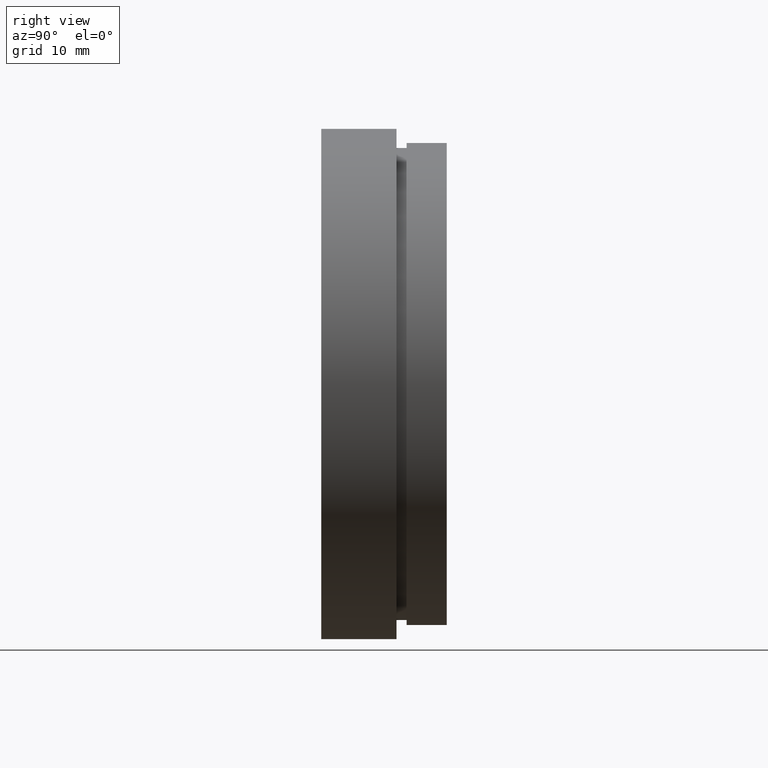
[diagram: clean part render]
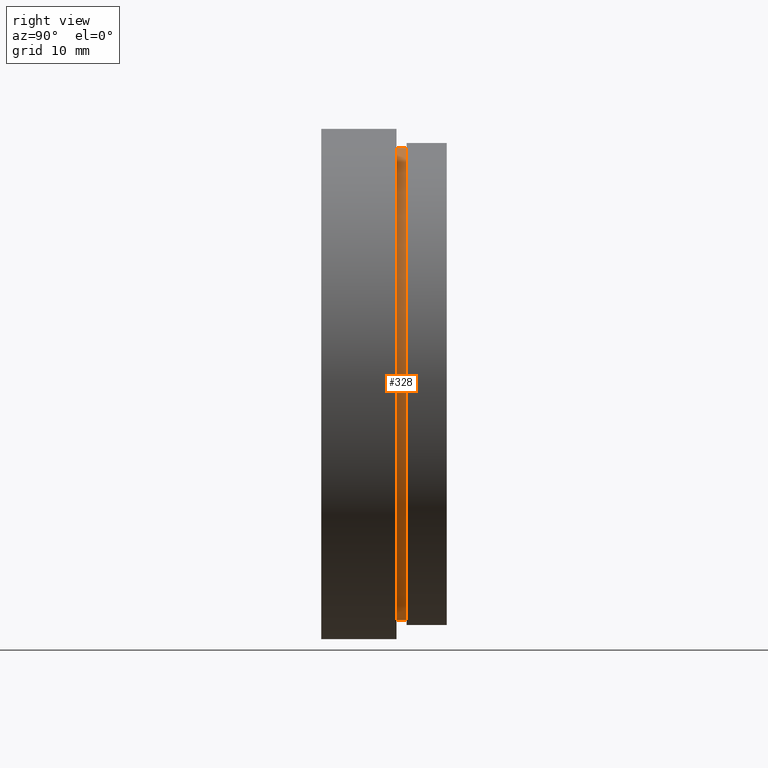
[diagram: same view with one face highlighted and labeled with its STEP entity id]
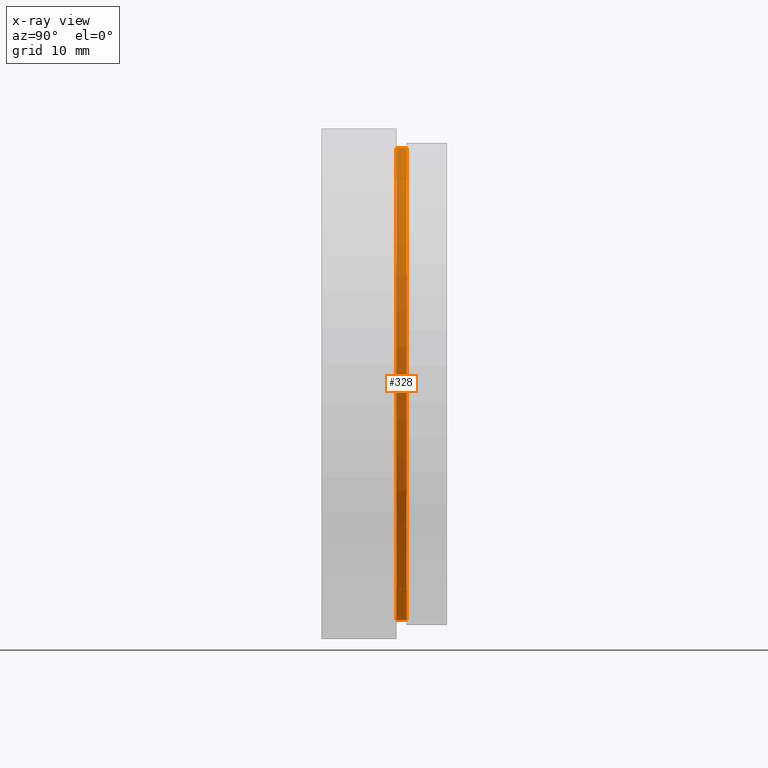
[diagram: x-ray of the same camera — body ghosted, the highlighted face saturated]
A machine part, right view. The second image highlights one B-rep face of the part: STEP entity #328.
The next image is the same camera in x-ray: the body ghosted, the highlighted face saturated — about 0% of this face is hidden behind the body in this view.
In plain terms, the highlighted cylindrical surface (partial cylindrical patch) has radius 23.5 mm, axis along (-0, 1, -0).
Its self-contained STEP definition (entity closure, byte-faithful):
#6 = VERTEX_POINT ( 'NONE', #571 ) ;
#8 = CARTESIAN_POINT ( 'NONE',  ( 0.0000000000000000000, 161.3761669434274500, 0.0000000000000000000 ) ) ;
#22 = DIRECTION ( 'NONE',  ( 0.0000000000000000000, 0.0000000000000000000, 1.000000000000000000 ) ) ;
#27 = AXIS2_PLACEMENT_3D ( 'NONE', #107, #295, #584 ) ;
#57 = CARTESIAN_POINT ( 'NONE',  ( 0.0000000000000000000, 7.499999999999978700, 23.50000000000001800 ) ) ;
#62 = CIRCLE ( 'NONE', #27, 23.50000000000001800 ) ;
#70 = AXIS2_PLACEMENT_3D ( 'NONE', #555, #405, #458 ) ;
#103 = CYLINDRICAL_SURFACE ( 'NONE', #415, 23.50000000000001800 ) ;
#107 = CARTESIAN_POINT ( 'NONE',  ( 0.0000000000000000000, 7.499999999999978700, 0.0000000000000000000 ) ) ;
#121 = CARTESIAN_POINT ( 'NONE',  ( 2.877919977996282300E-015, 7.499999999999978700, -23.50000000000001800 ) ) ;
#147 = EDGE_CURVE ( 'NONE', #333, #305, #489, .T. ) ;
#160 = CARTESIAN_POINT ( 'NONE',  ( 2.877919977996282300E-015, 161.3761669434274500, -23.50000000000001800 ) ) ;
#168 = CARTESIAN_POINT ( 'NONE',  ( 0.0000000000000000000, 161.3761669434274500, 23.50000000000001800 ) ) ;
#184 = EDGE_CURVE ( 'NONE', #6, #305, #533, .T. ) ;
#263 = EDGE_CURVE ( 'NONE', #324, #333, #62, .T. ) ;
#295 = DIRECTION ( 'NONE',  ( -0.0000000000000000000, 1.000000000000000000, -0.0000000000000000000 ) ) ;
#305 = VERTEX_POINT ( 'NONE', #348 ) ;
#324 = VERTEX_POINT ( 'NONE', #57 ) ;
#328 = ADVANCED_FACE ( 'NONE', ( #434 ), #103, .T. ) ;
#333 = VERTEX_POINT ( 'NONE', #121 ) ;
#344 = VECTOR ( 'NONE', #394, 1000.000000000000000 ) ;
#348 = CARTESIAN_POINT ( 'NONE',  ( 2.877919977996282300E-015, 8.499999999999980500, -23.50000000000001800 ) ) ;
#366 = DIRECTION ( 'NONE',  ( -0.0000000000000000000, 1.000000000000000000, -0.0000000000000000000 ) ) ;
#394 = DIRECTION ( 'NONE',  ( -0.0000000000000000000, 1.000000000000000000, -0.0000000000000000000 ) ) ;
#405 = DIRECTION ( 'NONE',  ( -0.0000000000000000000, 1.000000000000000000, -0.0000000000000000000 ) ) ;
#415 = AXIS2_PLACEMENT_3D ( 'NONE', #8, #447, #22 ) ;
#429 = ORIENTED_EDGE ( 'NONE', *, *, #147, .T. ) ;
#434 = FACE_OUTER_BOUND ( 'NONE', #499, .T. ) ;
#447 = DIRECTION ( 'NONE',  ( -0.0000000000000000000, 1.000000000000000000, -0.0000000000000000000 ) ) ;
#454 = EDGE_CURVE ( 'NONE', #324, #6, #505, .T. ) ;
#456 = ORIENTED_EDGE ( 'NONE', *, *, #184, .F. ) ;
#458 = DIRECTION ( 'NONE',  ( 0.0000000000000000000, 0.0000000000000000000, 1.000000000000000000 ) ) ;
#489 = LINE ( 'NONE', #160, #606 ) ;
#499 = EDGE_LOOP ( 'NONE', ( #600, #429, #456, #589 ) ) ;
#505 = LINE ( 'NONE', #168, #344 ) ;
#533 = CIRCLE ( 'NONE', #70, 23.50000000000001800 ) ;
#555 = CARTESIAN_POINT ( 'NONE',  ( 0.0000000000000000000, 8.499999999999980500, 0.0000000000000000000 ) ) ;
#571 = CARTESIAN_POINT ( 'NONE',  ( 0.0000000000000000000, 8.499999999999980500, 23.50000000000001800 ) ) ;
#584 = DIRECTION ( 'NONE',  ( 0.0000000000000000000, 0.0000000000000000000, 1.000000000000000000 ) ) ;
#589 = ORIENTED_EDGE ( 'NONE', *, *, #454, .F. ) ;
#600 = ORIENTED_EDGE ( 'NONE', *, *, #263, .T. ) ;
#606 = VECTOR ( 'NONE', #366, 1000.000000000000000 ) ;